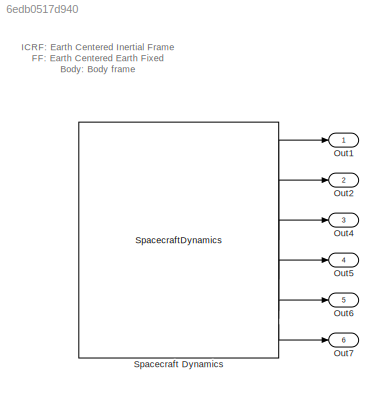
MODEL slx_6edb0517d940
KIND model
CONFIG AbsTol = auto
CONFIG EnableMultiTasking = off
CONFIG FixedStep = auto
CONFIG MaxStep = auto
CONFIG MinStep = auto
CONFIG RelTol = 1e-3
CONFIG SampleTimeConstraint = Unconstrained
CONFIG SolverName = ode45
CONFIG StartTime = 0.0
CONFIG StopTime = 3600
BLOCK [Outport] Out1
  SignalName = Rsat
BLOCK [Outport] Out2
  Port = 2
  SignalName = Vsat
BLOCK [Outport] Out4
  Port = 3
  SignalName = Asat
BLOCK [Outport] Out5
  Port = 4
  SignalName = Qib
BLOCK [Outport] Out6
  Port = 5
  SignalName = Wsat
BLOCK [Outport] Out7
  Port = 6
  SignalName = Time
BLOCK [SpacecraftDynamics] Spacecraft Dynamics
  argPeriapsis = aop
  attitude = q0
  attitudeRate = w0
  eccentricity = e
  forcesIn = off
  gravityModel = Point-mass
  inclination = inclination
  inertia = I
  mass = mass
  momentsIn = off
  outputAccel = on
  raan = raan
  semiMajorAxis = a
  startDate = startTimeJD
  trueAnomaly = ta
  useEOPs = off
  useGravGrad = off
ANNOTATION (root): ICRF: Earth Centered Inertial Frame FF: Earth Centered Earth Fixed Body: Body frame
LINE Spacecraft Dynamics:1 -> Out1:1
LINE Spacecraft Dynamics:2 -> Out2:1
LINE Spacecraft Dynamics:3 -> Out4:1
LINE Spacecraft Dynamics:4 -> Out5:1
LINE Spacecraft Dynamics:5 -> Out6:1
LINE Spacecraft Dynamics:6 -> Out7:1
